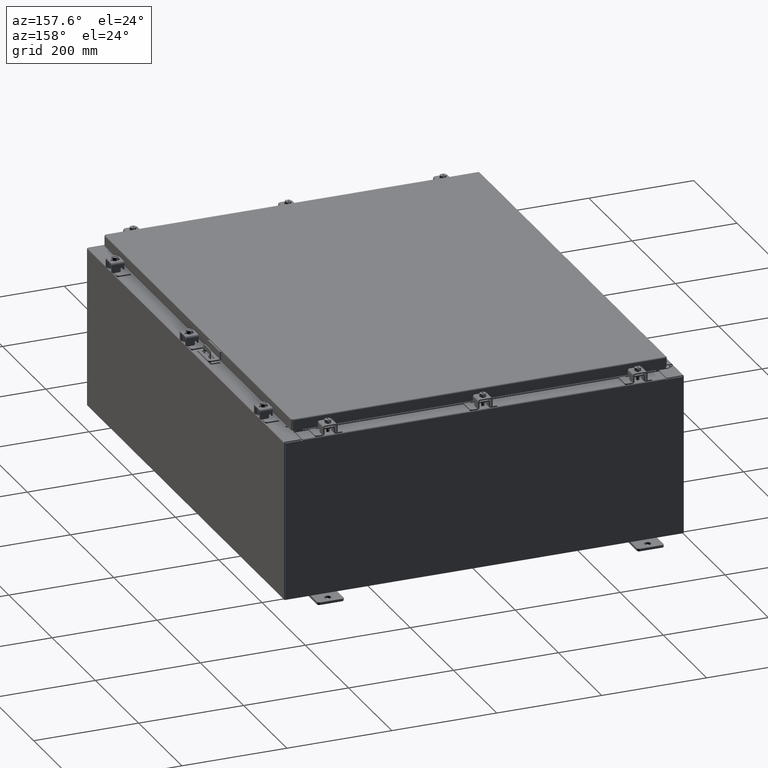
[diagram: clean part render]
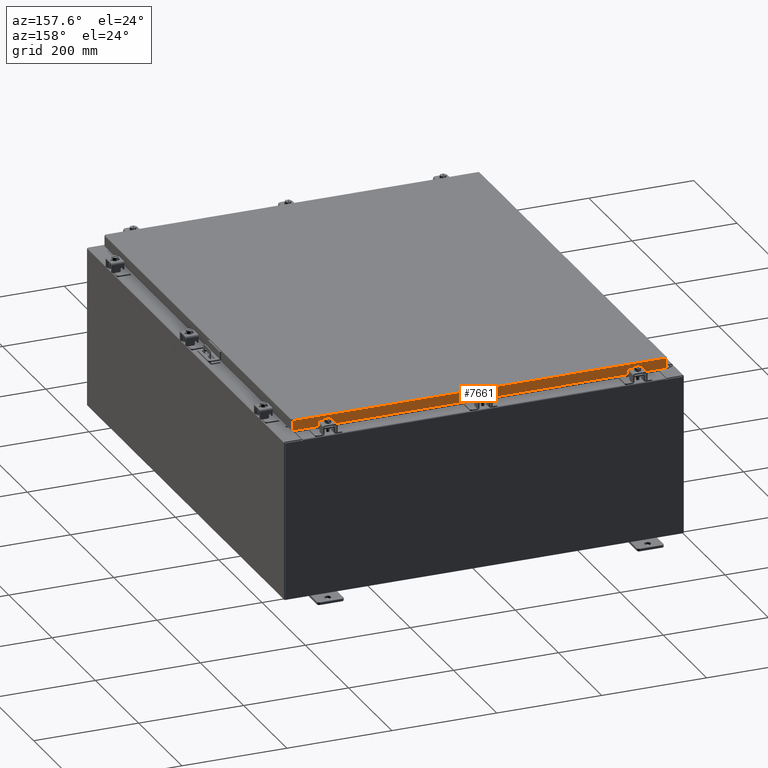
[diagram: same view with one face highlighted and labeled with its STEP entity id]
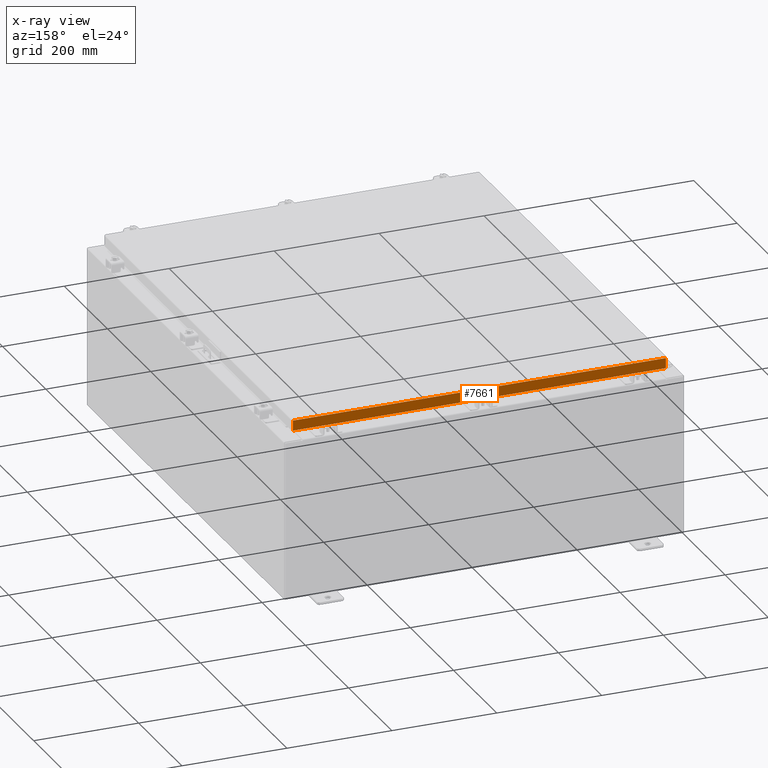
[diagram: x-ray of the same camera — body ghosted, the highlighted face saturated]
A machine part, auxiliary view. The second image highlights one B-rep face of the part: STEP entity #7661.
The next image is the same camera in x-ray: the body ghosted, the highlighted face saturated — about 0% of this face is hidden behind the body in this view.
In plain terms, the highlighted planar face has unit normal (0, -1, -0).
Its self-contained STEP definition (entity closure, byte-faithful):
#786 = DIRECTION ( 'NONE',  ( 1.000000000000000000, -0.0000000000000000000, 1.261330583805775800E-016 ) ) ;
#1504 = CARTESIAN_POINT ( 'NONE',  ( -13.98915786437627600, 17.09400000000000100, -0.07469999999999978000 ) ) ;
#1636 = EDGE_LOOP ( 'NONE', ( #29778, #41253, #29793, #25951, #6104, #26310 ) ) ;
#2338 = VECTOR ( 'NONE', #786, 39.37007874015748100 ) ;
#3162 = DIRECTION ( 'NONE',  ( 1.000000000000000000, -0.0000000000000000000, 1.261330583805775800E-016 ) ) ;
#4190 = CARTESIAN_POINT ( 'NONE',  ( -6.077841349889360200E-030, 17.09400000000000100, 4.844676449176209300E-014 ) ) ;
#4801 = VERTEX_POINT ( 'NONE', #29383 ) ;
#5207 = VERTEX_POINT ( 'NONE', #27779 ) ;
#5340 = EDGE_CURVE ( 'NONE', #38813, #4801, #36024, .T. ) ;
#6104 = ORIENTED_EDGE ( 'NONE', *, *, #34447, .F. ) ;
#7661 = ADVANCED_FACE ( 'NONE', ( #19278 ), #40815, .F. ) ;
#7948 = CARTESIAN_POINT ( 'NONE',  ( -13.23915786437627800, 17.09399999999999400, -0.8500000000000050800 ) ) ;
#8097 = DIRECTION ( 'NONE',  ( 1.000000000000000000, -0.0000000000000000000, -0.0000000000000000000 ) ) ;
#8414 = DIRECTION ( 'NONE',  ( -0.0000000000000000000, 2.818880942772347100E-015, -1.000000000000000000 ) ) ;
#9095 = VERTEX_POINT ( 'NONE', #7948 ) ;
#9328 = VECTOR ( 'NONE', #8414, 39.37007874015748100 ) ;
#10306 = VECTOR ( 'NONE', #8097, 39.37007874015748100 ) ;
#11003 = DIRECTION ( 'NONE',  ( 3.555540745226020000E-031, -1.000000000000000000, -2.818880942772347100E-015 ) ) ;
#11638 = CARTESIAN_POINT ( 'NONE',  ( -14.07800000000000700, 17.09400000000000100, -0.08770000000000007000 ) ) ;
#12443 = VECTOR ( 'NONE', #3162, 39.37007874015748100 ) ;
#15933 = CARTESIAN_POINT ( 'NONE',  ( 13.98915786437626400, 17.09400000000000100, 4.844676449176209300E-014 ) ) ;
#17994 = AXIS2_PLACEMENT_3D ( 'NONE', #4190, #11003, #37454 ) ;
#18730 = CARTESIAN_POINT ( 'NONE',  ( 13.98915786437626500, 17.09400000000000500, -0.8499999999999996400 ) ) ;
#19278 = FACE_OUTER_BOUND ( 'NONE', #1636, .T. ) ;
#19311 = DIRECTION ( 'NONE',  ( 0.0000000000000000000, 2.818880942772347100E-015, -1.000000000000000000 ) ) ;
#20216 = VECTOR ( 'NONE', #35017, 39.37007874015748100 ) ;
#21269 = LINE ( 'NONE', #11638, #20216 ) ;
#22148 = CARTESIAN_POINT ( 'NONE',  ( -13.98915786437627800, 17.09400000000000100, -0.08770000000000115200 ) ) ;
#24736 = CARTESIAN_POINT ( 'NONE',  ( -13.23915786437627800, 17.09399999999999400, -0.8500000000000050800 ) ) ;
#25895 = EDGE_CURVE ( 'NONE', #5207, #26803, #36783, .T. ) ;
#25951 = ORIENTED_EDGE ( 'NONE', *, *, #35312, .F. ) ;
#26310 = ORIENTED_EDGE ( 'NONE', *, *, #5340, .F. ) ;
#26803 = VERTEX_POINT ( 'NONE', #18730 ) ;
#27779 = CARTESIAN_POINT ( 'NONE',  ( 13.23915786437626400, 17.09399999999999400, -0.8500000000000050800 ) ) ;
#29383 = CARTESIAN_POINT ( 'NONE',  ( -13.98915786437627600, 17.09400000000000500, -0.8500000000000032000 ) ) ;
#29778 = ORIENTED_EDGE ( 'NONE', *, *, #41982, .F. ) ;
#29793 = ORIENTED_EDGE ( 'NONE', *, *, #25895, .F. ) ;
#33174 = LINE ( 'NONE', #15933, #41059 ) ;
#34019 = CARTESIAN_POINT ( 'NONE',  ( 13.98915786437626500, 17.09400000000000100, -0.08770000000000224800 ) ) ;
#34447 = EDGE_CURVE ( 'NONE', #4801, #9095, #37027, .T. ) ;
#35017 = DIRECTION ( 'NONE',  ( -1.000000000000000000, -5.743565819211262900E-031, 7.762034361881697200E-017 ) ) ;
#35312 = EDGE_CURVE ( 'NONE', #9095, #5207, #36941, .T. ) ;
#35752 = VERTEX_POINT ( 'NONE', #34019 ) ;
#36024 = LINE ( 'NONE', #1504, #9328 ) ;
#36126 = CARTESIAN_POINT ( 'NONE',  ( -14.07800000000000700, 17.09400000000000500, -0.8500000000000032000 ) ) ;
#36553 = CARTESIAN_POINT ( 'NONE',  ( -14.07800000000000700, 17.09400000000000500, -0.8500000000000032000 ) ) ;
#36783 = LINE ( 'NONE', #36126, #2338 ) ;
#36941 = LINE ( 'NONE', #24736, #10306 ) ;
#37027 = LINE ( 'NONE', #36553, #12443 ) ;
#37381 = EDGE_CURVE ( 'NONE', #35752, #26803, #33174, .T. ) ;
#37454 = DIRECTION ( 'NONE',  ( 0.0000000000000000000, 2.818880942772347100E-015, -1.000000000000000000 ) ) ;
#38813 = VERTEX_POINT ( 'NONE', #22148 ) ;
#40815 = PLANE ( 'NONE',  #17994 ) ;
#41059 = VECTOR ( 'NONE', #19311, 39.37007874015748100 ) ;
#41253 = ORIENTED_EDGE ( 'NONE', *, *, #37381, .T. ) ;
#41982 = EDGE_CURVE ( 'NONE', #35752, #38813, #21269, .T. ) ;